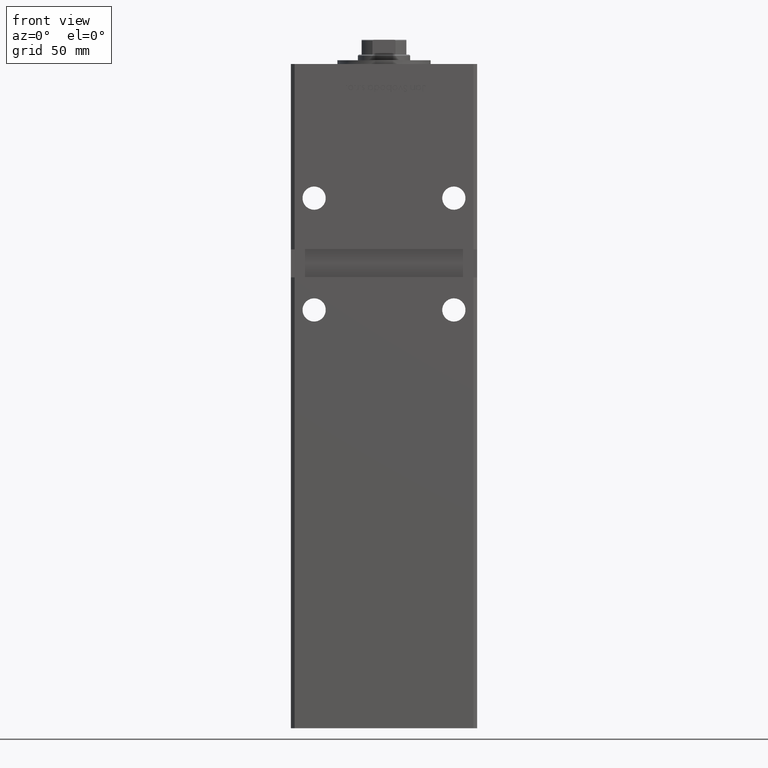
[diagram: clean part render]
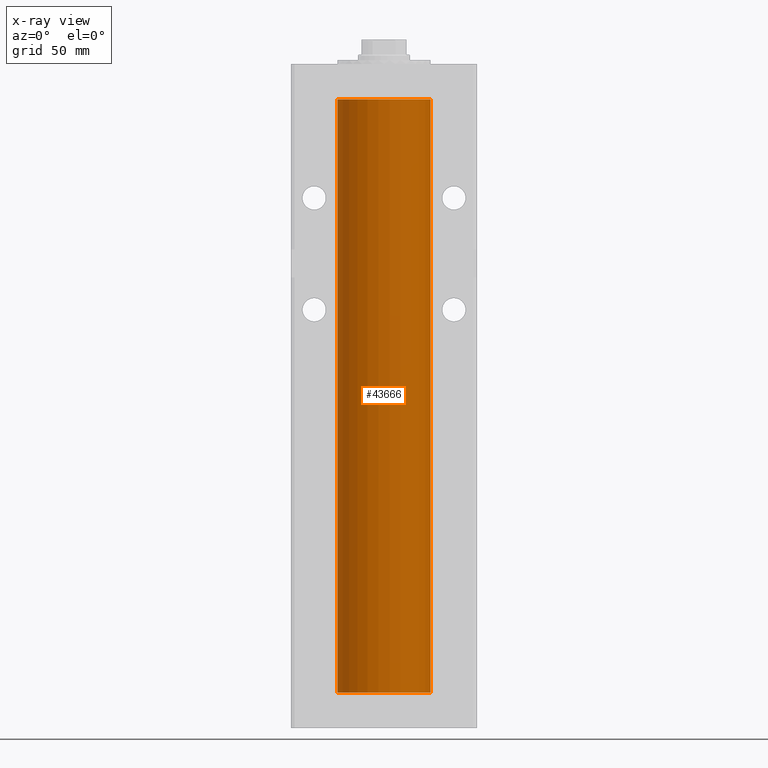
[diagram: x-ray — body ghosted, one internal face saturated and labeled with its STEP entity id]
A machine part, front view, then the same camera in x-ray: the body is ghosted and one INTERNAL B-rep face — a face not visible from any outside direction — is saturated and labeled: STEP entity #43666.
In plain terms, the highlighted cylindrical surface (partial cylindrical patch) has radius 25 mm, axis along (-0, -0, -1).
Its self-contained STEP definition (entity closure, byte-faithful):
#820 = VECTOR ( 'NONE', #45811, 1000.000000000000000 ) ;
#1371 = AXIS2_PLACEMENT_3D ( 'NONE', #19170, #47361, #7316 ) ;
#5007 = CARTESIAN_POINT ( 'NONE',  ( 0.000000000000000000, 0.000000000000000000, 0.000000000000000000 ) ) ;
#5622 = VERTEX_POINT ( 'NONE', #42395 ) ;
#7316 = DIRECTION ( 'NONE',  ( -1.000000000000000000, 0.000000000000000000, 0.000000000000000000 ) ) ;
#8292 = AXIS2_PLACEMENT_3D ( 'NONE', #52000, #47439, #19508 ) ;
#9284 = EDGE_LOOP ( 'NONE', ( #44271, #35388, #11673, #19481 ) ) ;
#9528 = LINE ( 'NONE', #29463, #820 ) ;
#11117 = VERTEX_POINT ( 'NONE', #52013 ) ;
#11673 = ORIENTED_EDGE ( 'NONE', *, *, #45271, .F. ) ;
#12693 = CARTESIAN_POINT ( 'NONE',  ( 25.00000000000000000, 3.061616997868383043E-15, 318.5000000000000000 ) ) ;
#19170 = CARTESIAN_POINT ( 'NONE',  ( 0.000000000000000000, 0.000000000000000000, 318.5000000000000000 ) ) ;
#19481 = ORIENTED_EDGE ( 'NONE', *, *, #45636, .F. ) ;
#19508 = DIRECTION ( 'NONE',  ( 1.000000000000000000, 0.000000000000000000, 0.000000000000000000 ) ) ;
#21687 = DIRECTION ( 'NONE',  ( 1.000000000000000000, 0.000000000000000000, 0.000000000000000000 ) ) ;
#25498 = CIRCLE ( 'NONE', #39234, 25.00000000000000000 ) ;
#25564 = EDGE_CURVE ( 'NONE', #43718, #5622, #9528, .T. ) ;
#29099 = VERTEX_POINT ( 'NONE', #29524 ) ;
#29463 = CARTESIAN_POINT ( 'NONE',  ( 25.00000000000000000, 3.061616997868383043E-15, 318.5000000000000000 ) ) ;
#29524 = CARTESIAN_POINT ( 'NONE',  ( -25.00000000000000000, 0.000000000000000000, 318.5000000000000000 ) ) ;
#31015 = CYLINDRICAL_SURFACE ( 'NONE', #1371, 25.00000000000000000 ) ;
#35046 = LINE ( 'NONE', #52215, #49483 ) ;
#35388 = ORIENTED_EDGE ( 'NONE', *, *, #25564, .T. ) ;
#39234 = AXIS2_PLACEMENT_3D ( 'NONE', #5007, #50404, #21687 ) ;
#40130 = FACE_OUTER_BOUND ( 'NONE', #9284, .T. ) ;
#41784 = CIRCLE ( 'NONE', #8292, 25.00000000000000000 ) ;
#42395 = CARTESIAN_POINT ( 'NONE',  ( 25.00000000000000000, 3.061616997868383043E-15, 0.000000000000000000 ) ) ;
#43666 = ADVANCED_FACE ( 'NONE', ( #40130 ), #31015, .F. ) ;
#43718 = VERTEX_POINT ( 'NONE', #12693 ) ;
#44271 = ORIENTED_EDGE ( 'NONE', *, *, #48925, .T. ) ;
#45271 = EDGE_CURVE ( 'NONE', #11117, #5622, #25498, .T. ) ;
#45636 = EDGE_CURVE ( 'NONE', #29099, #11117, #35046, .T. ) ;
#45811 = DIRECTION ( 'NONE',  ( -0.000000000000000000, -0.000000000000000000, -1.000000000000000000 ) ) ;
#47361 = DIRECTION ( 'NONE',  ( -0.000000000000000000, -0.000000000000000000, -1.000000000000000000 ) ) ;
#47439 = DIRECTION ( 'NONE',  ( -0.000000000000000000, 0.000000000000000000, 1.000000000000000000 ) ) ;
#48925 = EDGE_CURVE ( 'NONE', #29099, #43718, #41784, .T. ) ;
#48970 = DIRECTION ( 'NONE',  ( -0.000000000000000000, -0.000000000000000000, -1.000000000000000000 ) ) ;
#49483 = VECTOR ( 'NONE', #48970, 1000.000000000000000 ) ;
#50404 = DIRECTION ( 'NONE',  ( -0.000000000000000000, 0.000000000000000000, 1.000000000000000000 ) ) ;
#52000 = CARTESIAN_POINT ( 'NONE',  ( 0.000000000000000000, 0.000000000000000000, 318.5000000000000000 ) ) ;
#52013 = CARTESIAN_POINT ( 'NONE',  ( -25.00000000000000000, 0.000000000000000000, 0.000000000000000000 ) ) ;
#52215 = CARTESIAN_POINT ( 'NONE',  ( -25.00000000000000000, 0.000000000000000000, 318.5000000000000000 ) ) ;